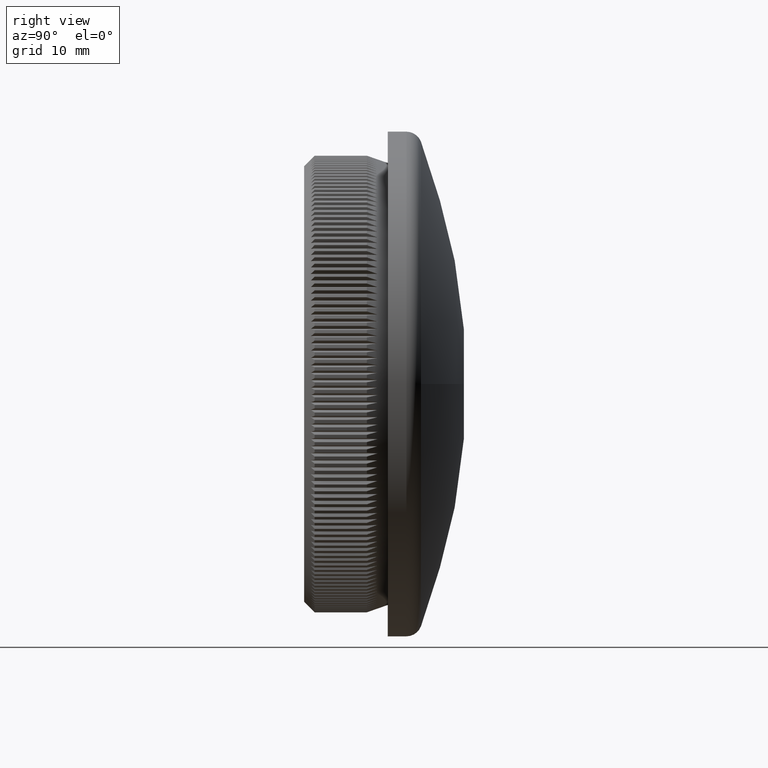
[diagram: clean part render]
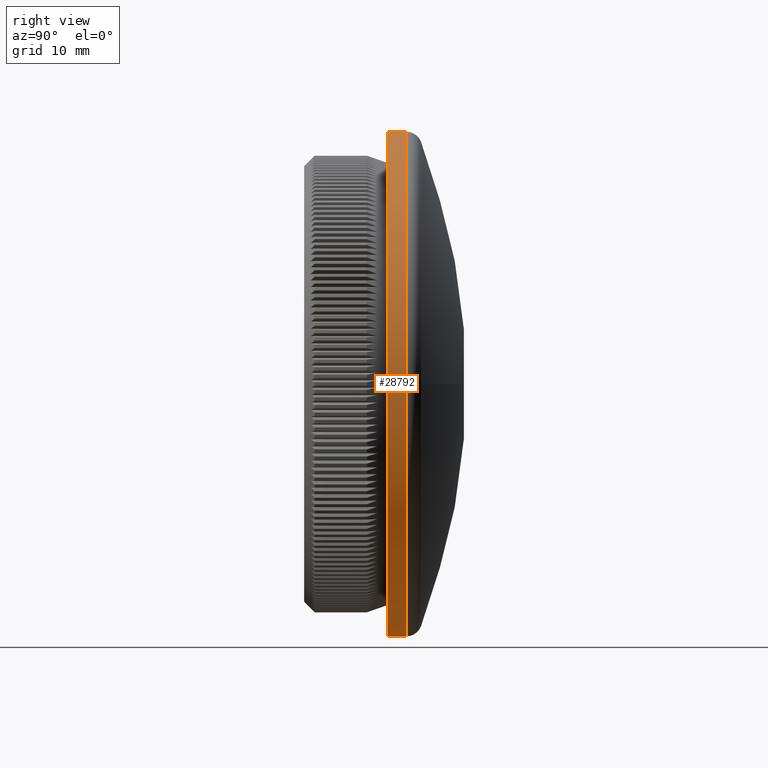
[diagram: same view with one face highlighted and labeled with its STEP entity id]
A machine part, right view. The second image highlights one B-rep face of the part: STEP entity #28792.
In plain terms, the highlighted cylindrical surface (partial cylindrical patch) has radius 24.15 mm, axis along (-0, -1, -0).
Its self-contained STEP definition (entity closure, byte-faithful):
#858 = DIRECTION ( 'NONE',  ( -0.0000000000000000000, -1.000000000000000000, -0.0000000000000000000 ) ) ;
#1383 = CARTESIAN_POINT ( 'NONE',  ( 0.0000000000000000000, 8.000000000000000000, 0.0000000000000000000 ) ) ;
#3163 = CIRCLE ( 'NONE', #6773, 24.14999999999999900 ) ;
#3933 = DIRECTION ( 'NONE',  ( 0.0000000000000000000, 0.0000000000000000000, -1.000000000000000000 ) ) ;
#4347 = VERTEX_POINT ( 'NONE', #9782 ) ;
#4979 = VERTEX_POINT ( 'NONE', #25574 ) ;
#5316 = CIRCLE ( 'NONE', #26167, 24.15000000000000200 ) ;
#5739 = DIRECTION ( 'NONE',  ( 0.0000000000000000000, 0.0000000000000000000, -1.000000000000000000 ) ) ;
#6773 = AXIS2_PLACEMENT_3D ( 'NONE', #1383, #8801, #3933 ) ;
#7009 = CARTESIAN_POINT ( 'NONE',  ( 2.957522019940858300E-015, 9.780020886796899400, 24.15000000000000200 ) ) ;
#7452 = LINE ( 'NONE', #19104, #18539 ) ;
#8011 = DIRECTION ( 'NONE',  ( -0.0000000000000000000, -1.000000000000000000, -0.0000000000000000000 ) ) ;
#8801 = DIRECTION ( 'NONE',  ( -0.0000000000000000000, -1.000000000000000000, -0.0000000000000000000 ) ) ;
#9782 = CARTESIAN_POINT ( 'NONE',  ( 0.0000000000000000000, 8.000000000000000000, -24.14999999999999900 ) ) ;
#13639 = EDGE_CURVE ( 'NONE', #4979, #4347, #19549, .T. ) ;
#13943 = FACE_OUTER_BOUND ( 'NONE', #19694, .T. ) ;
#15474 = DIRECTION ( 'NONE',  ( 0.0000000000000000000, 0.0000000000000000000, -1.000000000000000000 ) ) ;
#15946 = CARTESIAN_POINT ( 'NONE',  ( 0.0000000000000000000, 9.780020886796899400, 0.0000000000000000000 ) ) ;
#16997 = CARTESIAN_POINT ( 'NONE',  ( 2.957522019940858300E-015, 8.000000000000000000, 24.14999999999999900 ) ) ;
#18539 = VECTOR ( 'NONE', #21650, 1000.000000000000000 ) ;
#19104 = CARTESIAN_POINT ( 'NONE',  ( 2.957522019940858300E-015, 0.0000000000000000000, 24.15000000000000200 ) ) ;
#19549 = LINE ( 'NONE', #25628, #32196 ) ;
#19694 = EDGE_LOOP ( 'NONE', ( #21079, #24609, #32037, #24042 ) ) ;
#20588 = DIRECTION ( 'NONE',  ( -0.0000000000000000000, -1.000000000000000000, -0.0000000000000000000 ) ) ;
#21079 = ORIENTED_EDGE ( 'NONE', *, *, #24583, .T. ) ;
#21650 = DIRECTION ( 'NONE',  ( -0.0000000000000000000, -1.000000000000000000, -0.0000000000000000000 ) ) ;
#22242 = VERTEX_POINT ( 'NONE', #7009 ) ;
#23214 = CARTESIAN_POINT ( 'NONE',  ( 0.0000000000000000000, 0.0000000000000000000, 0.0000000000000000000 ) ) ;
#24042 = ORIENTED_EDGE ( 'NONE', *, *, #13639, .F. ) ;
#24583 = EDGE_CURVE ( 'NONE', #4979, #22242, #5316, .T. ) ;
#24609 = ORIENTED_EDGE ( 'NONE', *, *, #32439, .T. ) ;
#25574 = CARTESIAN_POINT ( 'NONE',  ( 0.0000000000000000000, 9.780020886796899400, -24.15000000000000200 ) ) ;
#25628 = CARTESIAN_POINT ( 'NONE',  ( 0.0000000000000000000, 0.0000000000000000000, -24.15000000000000200 ) ) ;
#26167 = AXIS2_PLACEMENT_3D ( 'NONE', #15946, #858, #5739 ) ;
#26458 = AXIS2_PLACEMENT_3D ( 'NONE', #23214, #8011, #15474 ) ;
#28792 = ADVANCED_FACE ( 'NONE', ( #13943 ), #31373, .T. ) ;
#29227 = VERTEX_POINT ( 'NONE', #16997 ) ;
#30598 = EDGE_CURVE ( 'NONE', #4347, #29227, #3163, .T. ) ;
#31373 = CYLINDRICAL_SURFACE ( 'NONE', #26458, 24.15000000000000200 ) ;
#32037 = ORIENTED_EDGE ( 'NONE', *, *, #30598, .F. ) ;
#32196 = VECTOR ( 'NONE', #20588, 1000.000000000000000 ) ;
#32439 = EDGE_CURVE ( 'NONE', #22242, #29227, #7452, .T. ) ;